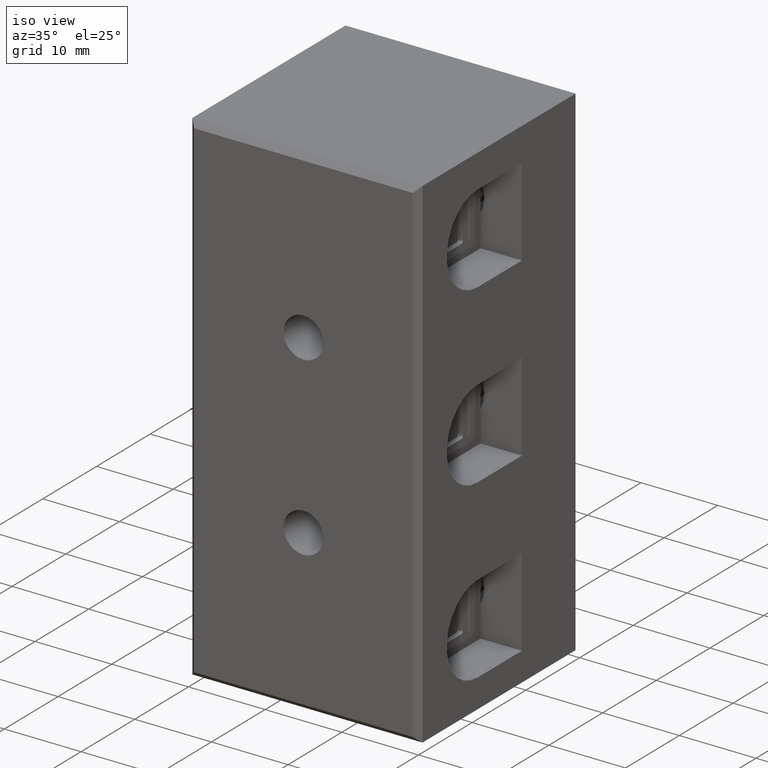
[diagram: clean part render]
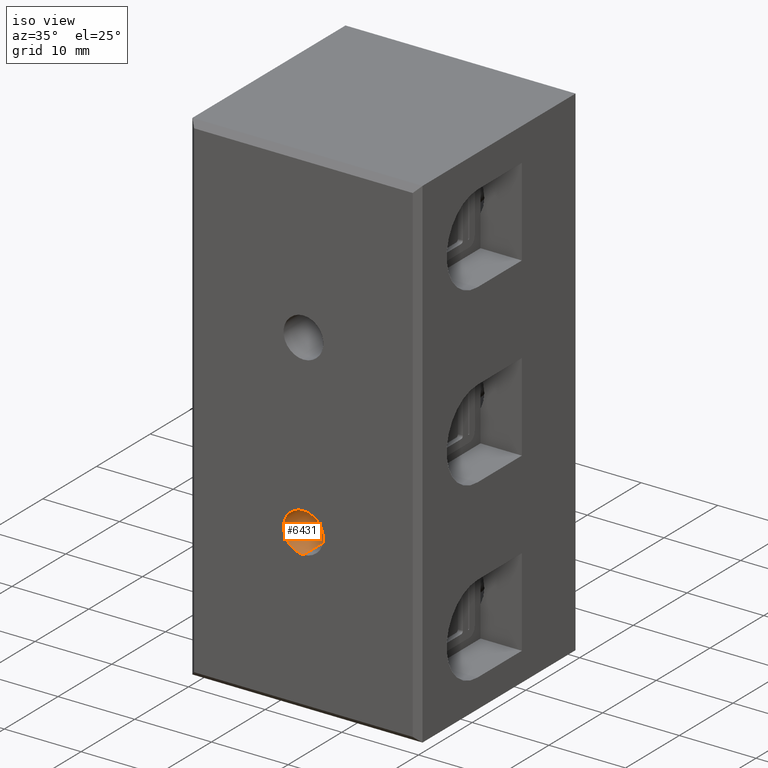
[diagram: same view with one face highlighted and labeled with its STEP entity id]
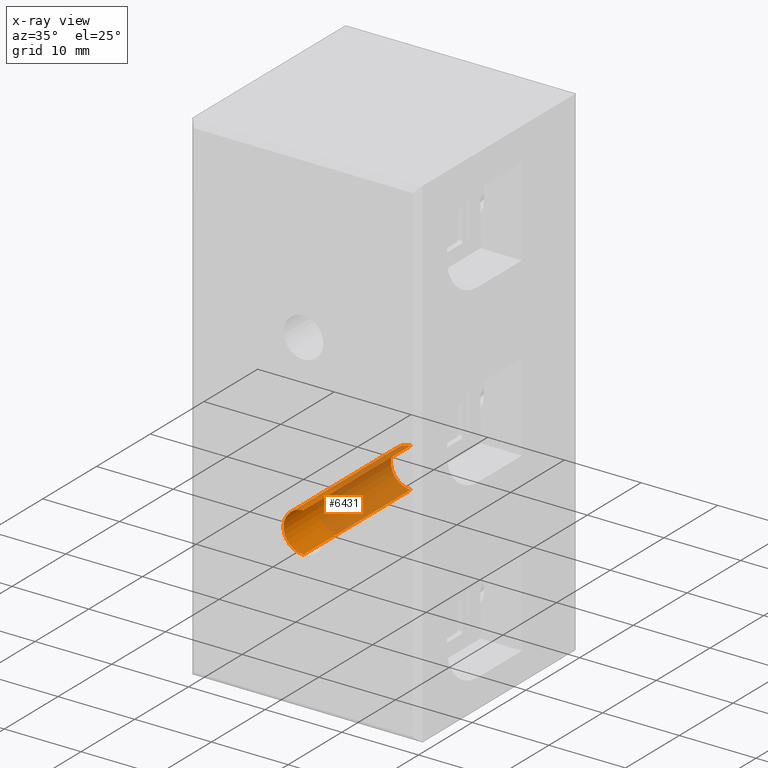
[diagram: x-ray of the same camera — body ghosted, the highlighted face saturated]
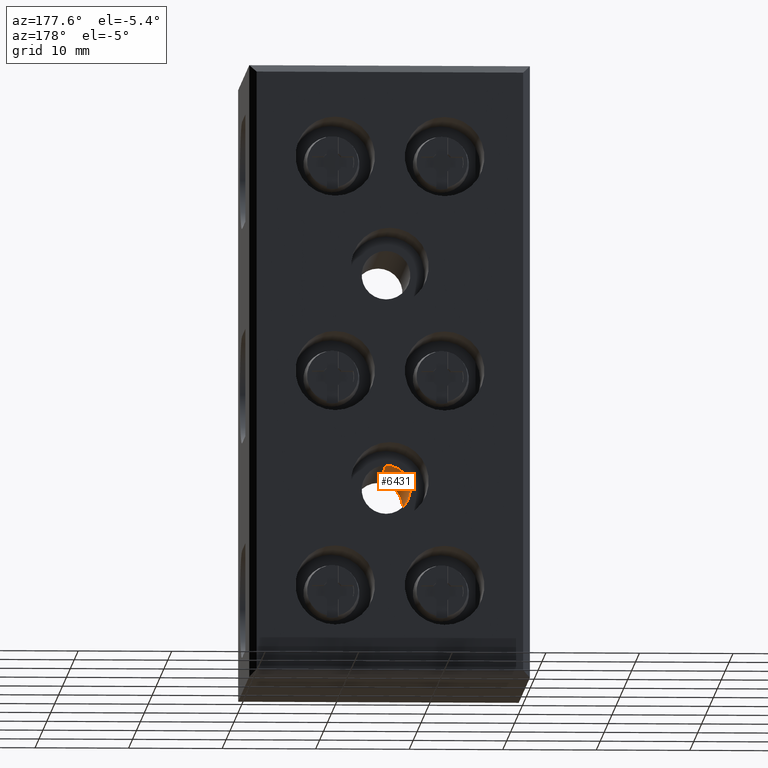
[diagram: same view with one face highlighted and labeled with its STEP entity id]
A machine part, iso view. The second image highlights one B-rep face of the part: STEP entity #6431.
The next image is the same camera in x-ray: the body ghosted, the highlighted face saturated — about 68% of this face is hidden behind the body in this view.
A second angle (auxiliary view) of the same face is appended — the face is thin or edge-on in the first view.
In plain terms, the highlighted cylindrical surface (edge-blend (fillet) strip) has radius 2.6 mm, axis along (0, 1, 0).
Its self-contained STEP definition (entity closure, byte-faithful):
#2029 = DIRECTION ( 'NONE',  ( 0.0000000000000000000, 0.0000000000000000000, 1.000000000000000000 ) ) ;
#2033 = DIRECTION ( 'NONE',  ( -0.0000000000000000000, -1.000000000000000000, -0.0000000000000000000 ) ) ;
#2040 = CARTESIAN_POINT ( 'NONE',  ( 15.00000000000000000, 19.99999999999999600, 21.00000000000000000 ) ) ;
#2045 = CARTESIAN_POINT ( 'NONE',  ( 15.00000000000000000, 0.0000000000000000000, 21.00000000000000000 ) ) ;
#2048 = DIRECTION ( 'NONE',  ( 0.0000000000000000000, 0.0000000000000000000, 1.000000000000000000 ) ) ;
#2057 = DIRECTION ( 'NONE',  ( -0.0000000000000000000, -1.000000000000000000, -0.0000000000000000000 ) ) ;
#2085 = LINE ( 'NONE', #2096, #2838 ) ;
#2096 = CARTESIAN_POINT ( 'NONE',  ( 15.00000000000000000, -28.00000000000001800, 18.40000000000000200 ) ) ;
#2100 = DIRECTION ( 'NONE',  ( 0.0000000000000000000, 1.000000000000000000, 0.0000000000000000000 ) ) ;
#2109 = CARTESIAN_POINT ( 'NONE',  ( 15.00000000000000000, -28.00000000000001800, 23.59999999999999800 ) ) ;
#2152 = DIRECTION ( 'NONE',  ( 0.0000000000000000000, 1.000000000000000000, 0.0000000000000000000 ) ) ;
#2158 = LINE ( 'NONE', #2109, #2837 ) ;
#2821 = CIRCLE ( 'NONE', #2831, 2.599999999999998300 ) ;
#2831 = AXIS2_PLACEMENT_3D ( 'NONE', #2045, #2033, #2029 ) ;
#2837 = VECTOR ( 'NONE', #2152, 1000.000000000000000 ) ;
#2838 = VECTOR ( 'NONE', #2100, 1000.000000000000000 ) ;
#2870 = AXIS2_PLACEMENT_3D ( 'NONE', #2040, #2057, #2048 ) ;
#2872 = CIRCLE ( 'NONE', #2870, 2.599999999999998300 ) ;
#4012 = ORIENTED_EDGE ( 'NONE', *, *, #6059, .T. ) ;
#4044 = ORIENTED_EDGE ( 'NONE', *, *, #6072, .T. ) ;
#4060 = ORIENTED_EDGE ( 'NONE', *, *, #6067, .F. ) ;
#4075 = ORIENTED_EDGE ( 'NONE', *, *, #6086, .F. ) ;
#4768 = VERTEX_POINT ( 'NONE', #9457 ) ;
#4777 = VERTEX_POINT ( 'NONE', #9386 ) ;
#4806 = VERTEX_POINT ( 'NONE', #9419 ) ;
#4810 = VERTEX_POINT ( 'NONE', #9468 ) ;
#6059 = EDGE_CURVE ( 'NONE', #4806, #4777, #2821, .T. ) ;
#6067 = EDGE_CURVE ( 'NONE', #4810, #4768, #2872, .T. ) ;
#6072 = EDGE_CURVE ( 'NONE', #4777, #4768, #2085, .T. ) ;
#6086 = EDGE_CURVE ( 'NONE', #4806, #4810, #2158, .T. ) ;
#6431 = ADVANCED_FACE ( 'NONE', ( #7150 ), #7151, .F. ) ;
#7150 = FACE_OUTER_BOUND ( 'NONE', #8081, .T. ) ;
#7151 = CYLINDRICAL_SURFACE ( 'NONE', #8486, 2.599999999999998300 ) ;
#7152 = CARTESIAN_POINT ( 'NONE',  ( 15.00000000000000000, -28.00000000000001800, 21.00000000000000000 ) ) ;
#7162 = DIRECTION ( 'NONE',  ( 0.0000000000000000000, 1.000000000000000000, 0.0000000000000000000 ) ) ;
#7163 = DIRECTION ( 'NONE',  ( 0.0000000000000000000, 0.0000000000000000000, 1.000000000000000000 ) ) ;
#8081 = EDGE_LOOP ( 'NONE', ( #4012, #4044, #4060, #4075 ) ) ;
#8486 = AXIS2_PLACEMENT_3D ( 'NONE', #7152, #7162, #7163 ) ;
#9386 = CARTESIAN_POINT ( 'NONE',  ( 15.00000000000000000, 0.0000000000000000000, 18.40000000000000200 ) ) ;
#9419 = CARTESIAN_POINT ( 'NONE',  ( 15.00000000000000000, 0.0000000000000000000, 23.59999999999999800 ) ) ;
#9457 = CARTESIAN_POINT ( 'NONE',  ( 15.00000000000000000, 19.99999999999999600, 18.40000000000000200 ) ) ;
#9468 = CARTESIAN_POINT ( 'NONE',  ( 15.00000000000000000, 19.99999999999999600, 23.59999999999999800 ) ) ;